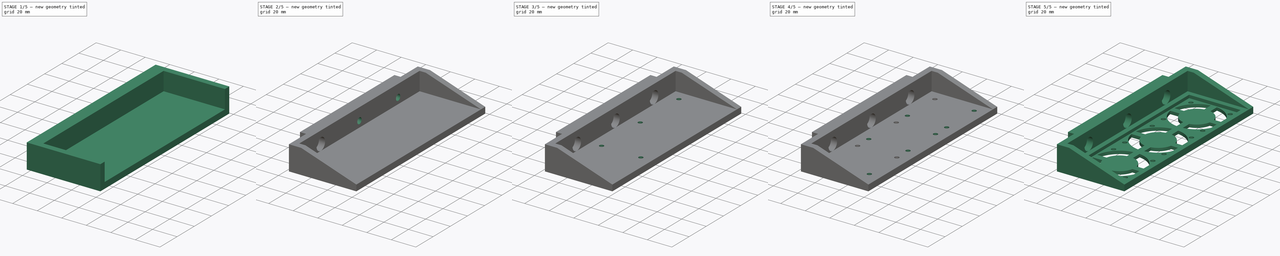
[diagram: build sequence overview — one tinted view per stage of 5, left to right]
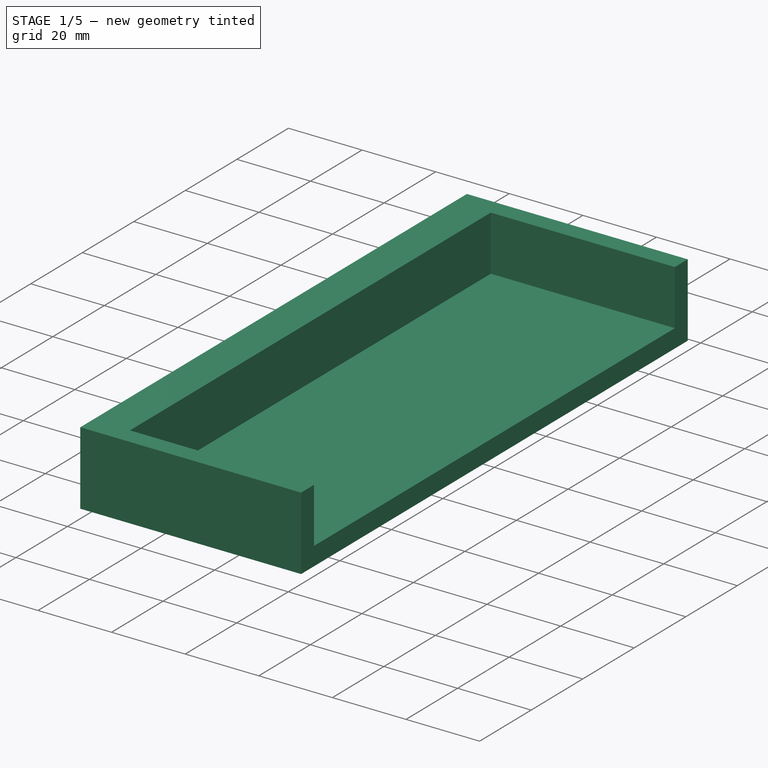
[diagram: stage 1 of 5 — iso view after this stage's code; geometry added in this stage tinted green]
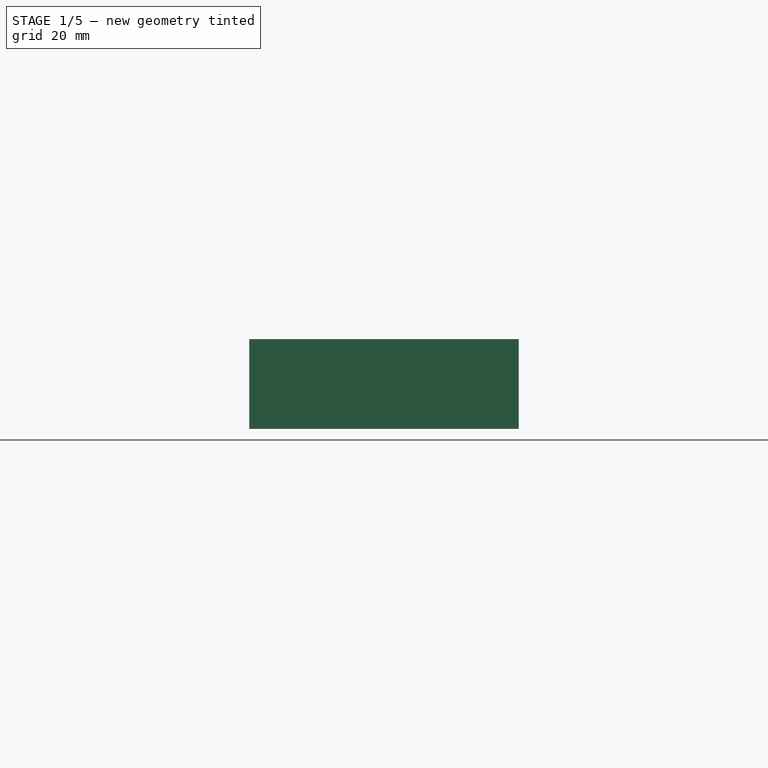
[diagram: stage 1 of 5 — front view after this stage's code; geometry added in this stage tinted green]
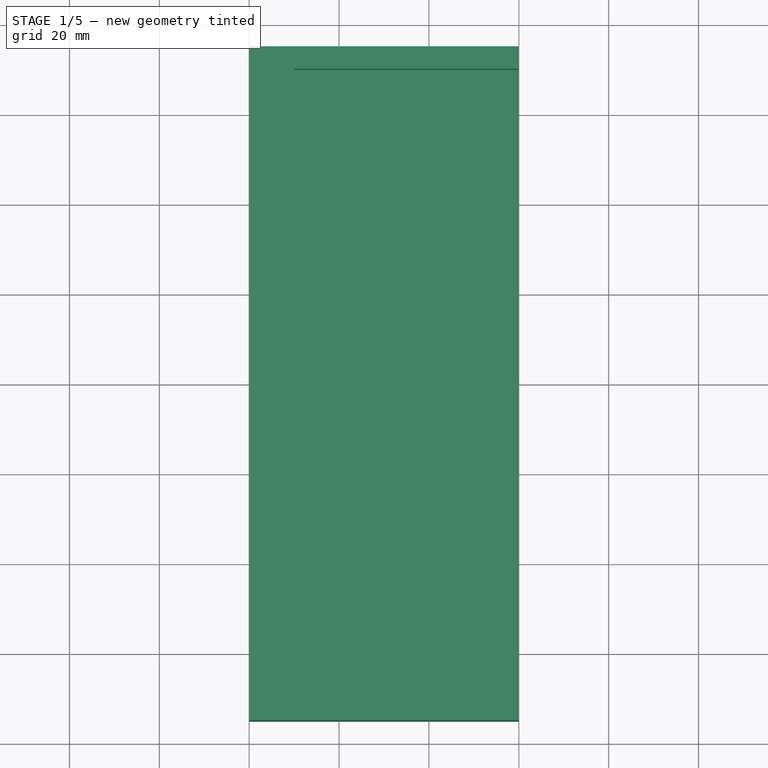
[diagram: stage 1 of 5 — top view after this stage's code; geometry added in this stage tinted green]
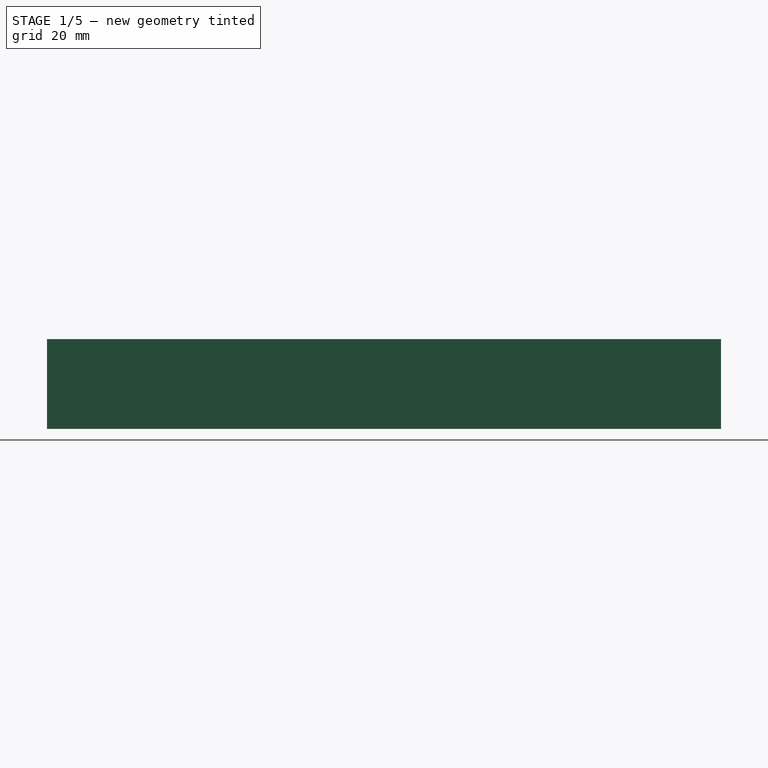
[diagram: stage 1 of 5 — right view after this stage's code; geometry added in this stage tinted green]
FCSTD DOCUMENT  (FreeCAD 0.17R7631 (Git))
Label: heater_pwm_fan_test_ext
License: CreativeCommons Attribution-ShareAlike
LicenseURL: http://creativecommons.org/licenses/by-sa/4.0/
objects: Sketcher::SketchObject×13, PartDesign::Pocket×10, PartDesign::LinearPattern×8, PartDesign::Pad×3, PartDesign::Fillet×3, PartDesign::Body×1, Part::Feature×1
note: 52 computed .brp shape members not serialized (recipe doc carries the construction recipe); baked Part::Feature solids carry a one-line shape summary decoded from their .brp

FEATURE [Sketcher::SketchObject] Sketch
  MapMode = 5
  Support = -> [XY_Plane]
  sketch-geometry (4):
    g0: LineSegment StartX=0 StartY=75 StartZ=0 EndX=60 EndY=75 EndZ=0
    g1: LineSegment StartX=60 StartY=75 StartZ=0 EndX=60 EndY=-75 EndZ=0
    g2: LineSegment StartX=60 StartY=-75 StartZ=0 EndX=0 EndY=-75 EndZ=0
    g3: LineSegment StartX=0 StartY=-75 StartZ=0 EndX=0 EndY=75 EndZ=0
  constraints (12):
    c: Coincident(g0,g1)
    c: Coincident(g1,g2)
    c: Coincident(g2,g3)
    c: Coincident(g3,g0)
    c: Horizontal(g0)
    c: Horizontal(g2)
    c: Vertical(g1)
    c: Vertical(g3)
    c: DistanceY(g3,g3) = 150
    c: DistanceX(g0,g0) = 60
    c: PointOnObject(g2,g-2)
    c: DistanceY(g2,g-1) = 75
FEATURE [PartDesign::Pad] Pad
  Length = 5
  Length2 = 100
  Profile = -> Sketch
  Type = 0
FEATURE [Sketcher::SketchObject] Sketch001
  MapMode = 5
  Placement = pos=(0,0,5) rot=(0,0,1;0rad)
  Support = -> [Pad]
  sketch-geometry (8):
    g0: LineSegment StartX=60 StartY=75 StartZ=0 EndX=60 EndY=70 EndZ=0
    g1: LineSegment StartX=60 StartY=70 StartZ=0 EndX=10 EndY=70 EndZ=0
    g2: LineSegment StartX=10 StartY=70 StartZ=0 EndX=10 EndY=-70 EndZ=0
    g3: LineSegment StartX=10 StartY=-70 StartZ=0 EndX=60 EndY=-70 EndZ=0
    g4: LineSegment StartX=60 StartY=-70 StartZ=0 EndX=60 EndY=-75 EndZ=0
    g5: LineSegment StartX=60 StartY=-75 StartZ=0 EndX=0 EndY=-75 EndZ=0
    g6: LineSegment StartX=0 StartY=-75 StartZ=0 EndX=0 EndY=75 EndZ=0
    g7: LineSegment StartX=0 StartY=75 StartZ=0 EndX=60 EndY=75 EndZ=0
  constraints (16):
    c: Coincident(g0,g1)
    c: Horizontal(g1)
    c: Coincident(g1,g2)
    c: Vertical(g2)
    c: Coincident(g2,g3)
    c: Horizontal(g3)
    c: Coincident(g3,g4)
    c: Coincident(g4,g5)
    c: Coincident(g5,g6)
    c: Coincident(g6,g7)
    c: Coincident(g0,g7)
    c: Vertical(g6)
    c: Vertical(g0)
    c: Vertical(g4)
    c: Horizontal(g7)
    c: Horizontal(g5)
FEATURE [PartDesign::Pad] Pad001
  BaseFeature = -> Pad
  Length = 15
  Length2 = 100
  Profile = -> Sketch001
  Type = 0
FEATURE [PartDesign::Body] Body
  Model = -> [Sketch,Pad,Sketch001,Pad001,Sketch002,Pocket,Sketch003,Pocket001,Sketch004,Pocket002,LinearPattern,Sketch005,Pocket003,LinearPattern001,Sketch006,Pocket004,LinearPattern002,Sketch007,Pocket005,LinearPattern003,Sketch008,Pocket006,LinearPattern004,Sketch009,Pocket007,LinearPattern005,Sketch010,Pocket008,Sketch011,Pocket009,LinearPattern006,Sketch012,Pad002,LinearPattern007]
  Origin = -> BodyOrigin
  Tip = -> LinearPattern007
FEATURE [Part::Feature] LinearPattern007001  label="LinearPattern008"
  shape: bbox 60 x 150 x 20 mm, 90 faces (baked)
FEATURE [PartDesign::Fillet] Fillet
  Base = -> LinearPattern007001 [Edge1,Edge4]
  Radius = 5
FEATURE [PartDesign::Fillet] Fillet001
  Base = -> Fillet [Edge5,Edge6,Edge1,Edge9,Edge11]
  Radius = 1
FEATURE [PartDesign::Fillet] Fillet002
  Base = -> Fillet001 [Edge17,Edge18,Edge20,Edge19]
  Radius = 1
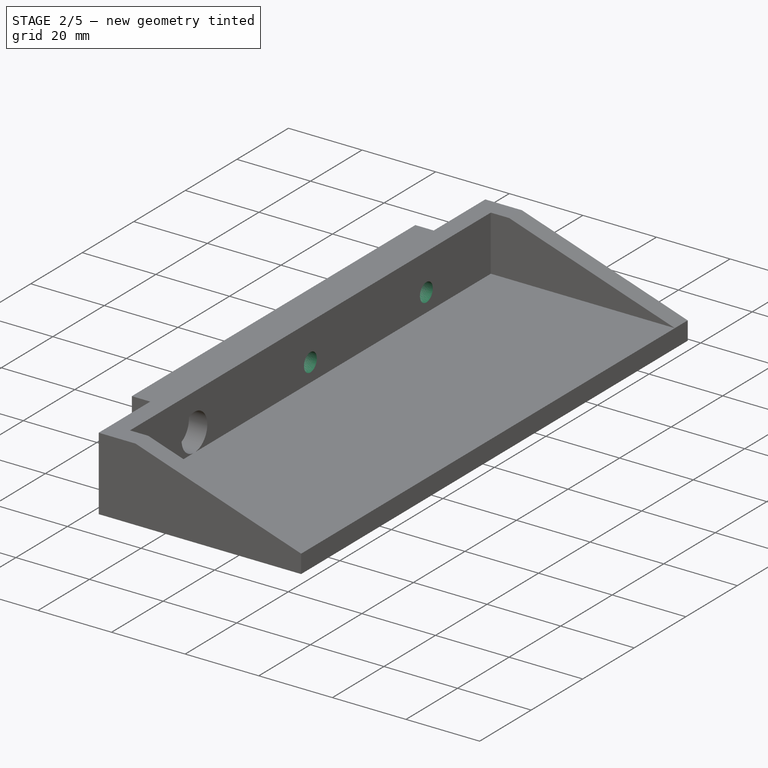
[diagram: stage 2 of 5 — iso view after this stage's code; geometry added in this stage tinted green]
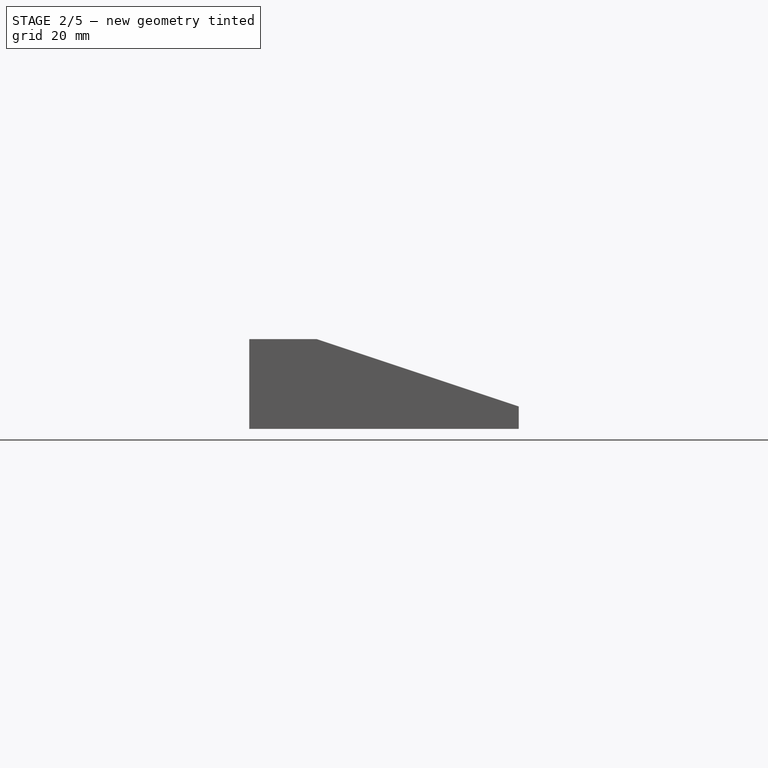
[diagram: stage 2 of 5 — front view after this stage's code; geometry added in this stage tinted green]
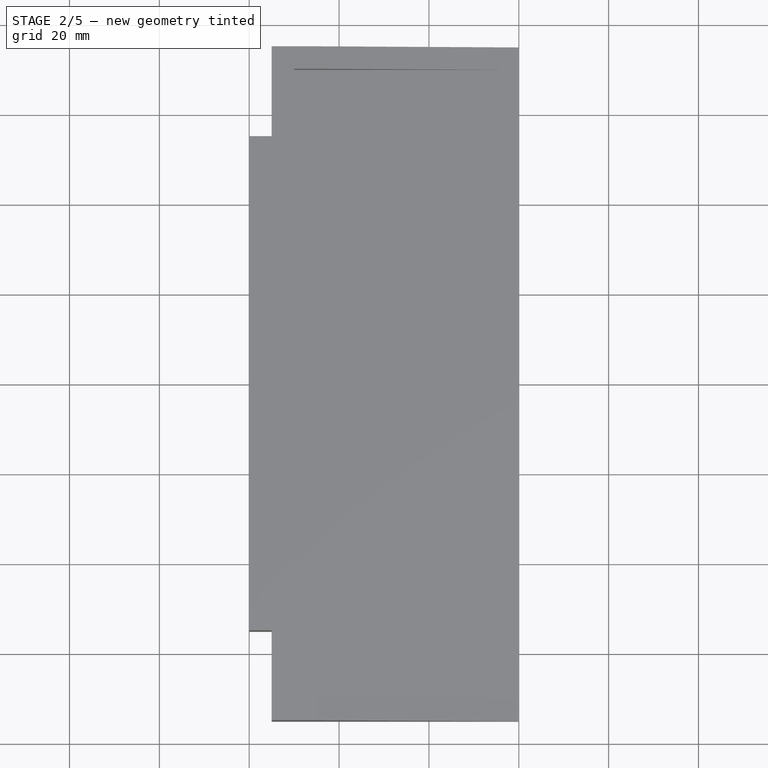
[diagram: stage 2 of 5 — top view after this stage's code; geometry added in this stage tinted green]
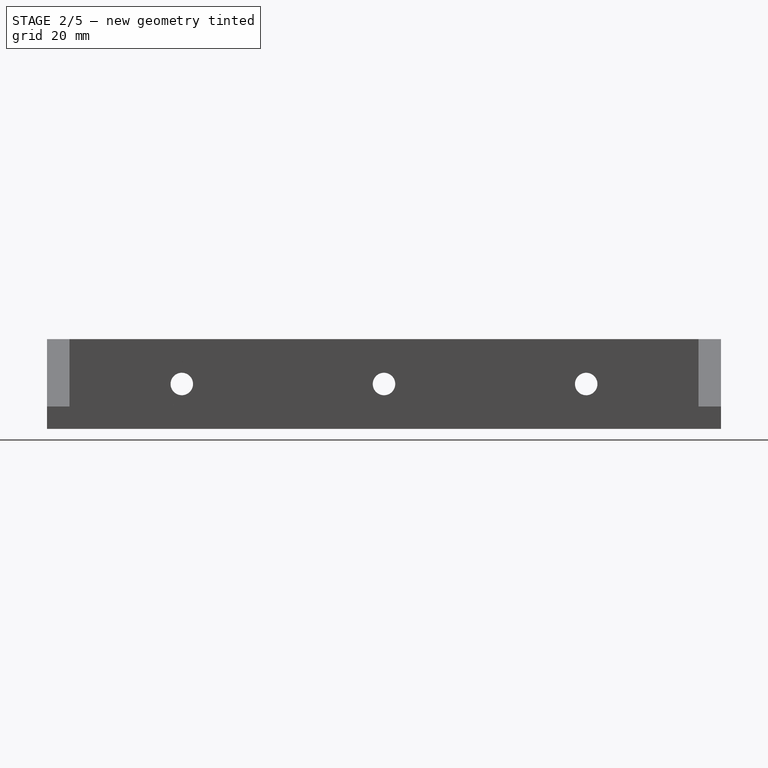
[diagram: stage 2 of 5 — right view after this stage's code; geometry added in this stage tinted green]
FEATURE [Sketcher::SketchObject] Sketch002
  MapMode = 5
  Placement = pos=(0,0,20) rot=(0,0,1;0rad)
  Support = -> [Pad001]
  sketch-geometry (8):
    g0: LineSegment StartX=5 StartY=75 StartZ=0 EndX=5 EndY=55 EndZ=0
    g1: LineSegment StartX=5 StartY=55 StartZ=0 EndX=0 EndY=55 EndZ=0
    g2: LineSegment StartX=0 StartY=55 StartZ=0 EndX=0 EndY=-55 EndZ=0
    g3: LineSegment StartX=0 StartY=-55 StartZ=0 EndX=5 EndY=-55 EndZ=0
    g4: LineSegment StartX=5 StartY=-55 StartZ=0 EndX=5 EndY=-75 EndZ=0
    g5: LineSegment StartX=5 StartY=-75 StartZ=0 EndX=-5 EndY=-75 EndZ=0
    g6: LineSegment StartX=-5 StartY=-75 StartZ=0 EndX=-5 EndY=75 EndZ=0
    g7: LineSegment StartX=-5 StartY=75 StartZ=0 EndX=5 EndY=75 EndZ=0
  constraints (16):
    c: Coincident(g0,g1)
    c: Coincident(g1,g2)
    c: Vertical(g2)
    c: Coincident(g2,g3)
    c: Coincident(g3,g4)
    c: Coincident(g4,g5)
    c: Coincident(g5,g6)
    c: Vertical(g6)
    c: Coincident(g6,g7)
    c: Coincident(g7,g0)
    c: Vertical(g0)
    c: Vertical(g4)
    c: Horizontal(g7)
    c: Horizontal(g1)
    c: Horizontal(g3)
    c: Horizontal(g5)
FEATURE [PartDesign::Pocket] Pocket
  BaseFeature = -> Pad001
  Length = 5
  Profile = -> Sketch002
  Type = 1
FEATURE [Sketcher::SketchObject] Sketch003
  MapMode = 5
  Placement = pos=(0,75,0) rot=(0,0.707107,0.707107;3.14159rad)
  Support = -> [Pocket]
  sketch-geometry (3):
    g0: LineSegment StartX=-15 StartY=20 StartZ=0 EndX=-60 EndY=5 EndZ=0
    g1: LineSegment StartX=-60 StartY=5 StartZ=0 EndX=-60 EndY=20 EndZ=0
    g2: LineSegment StartX=-60 StartY=20 StartZ=0 EndX=-15 EndY=20 EndZ=0
  constraints (5):
    c: Coincident(g0,g1)
    c: Coincident(g1,g2)
    c: Coincident(g0,g2)
    c: Horizontal(g2)
    c: Vertical(g1)
FEATURE [PartDesign::Pocket] Pocket001
  BaseFeature = -> Pocket
  Length = 5
  Profile = -> Sketch003
  Type = 1
FEATURE [Sketcher::SketchObject] Sketch004
  MapMode = 5
  Placement = pos=(10,0,0) rot=(0.57735,0.57735,0.57735;2.0944rad)
  Support = -> [Pocket001]
  sketch-geometry (1):
    g0: Circle CenterX=-45 CenterY=10 CenterZ=0 NormalX=0 NormalY=0 NormalZ=1 Radius=2.5
  constraints (3):
    c: DistanceY(g-1,g0) = 10
    c: DistanceX(g0,g-1) = 45
    c: Radius(g0) = 2.5
FEATURE [PartDesign::Pocket] Pocket002
  BaseFeature = -> Pocket001
  Length = 5
  Profile = -> Sketch004
  Type = 1
FEATURE [PartDesign::LinearPattern] LinearPattern
  BaseFeature = -> Pocket002
  Direction = -> Sketch004 [H_Axis]
  Length = 90
  Occurrences = 3
  Originals = -> [Pocket002]
FEATURE [Sketcher::SketchObject] Sketch005
  ExternalGeometry = -> [LinearPattern]
  MapMode = 5
  Placement = pos=(10,0,0) rot=(0.57735,0.57735,0.57735;2.0944rad)
  Support = -> [LinearPattern]
  sketch-geometry (1):
    g0: Circle CenterX=-45 CenterY=10 CenterZ=0 NormalX=0 NormalY=0 NormalZ=1 Radius=5
  constraints (2):
    c: Coincident(g0,g-3)
    c: Radius(g0) = 5
FEATURE [PartDesign::Pocket] Pocket003
  BaseFeature = -> LinearPattern
  Length = 5
  Profile = -> Sketch005
  Type = 0
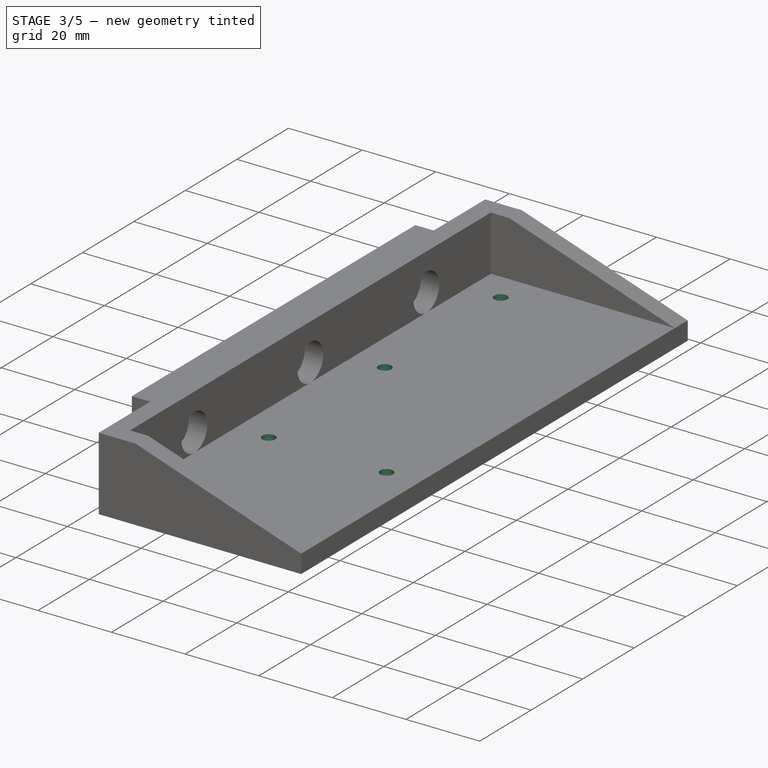
[diagram: stage 3 of 5 — iso view after this stage's code; geometry added in this stage tinted green]
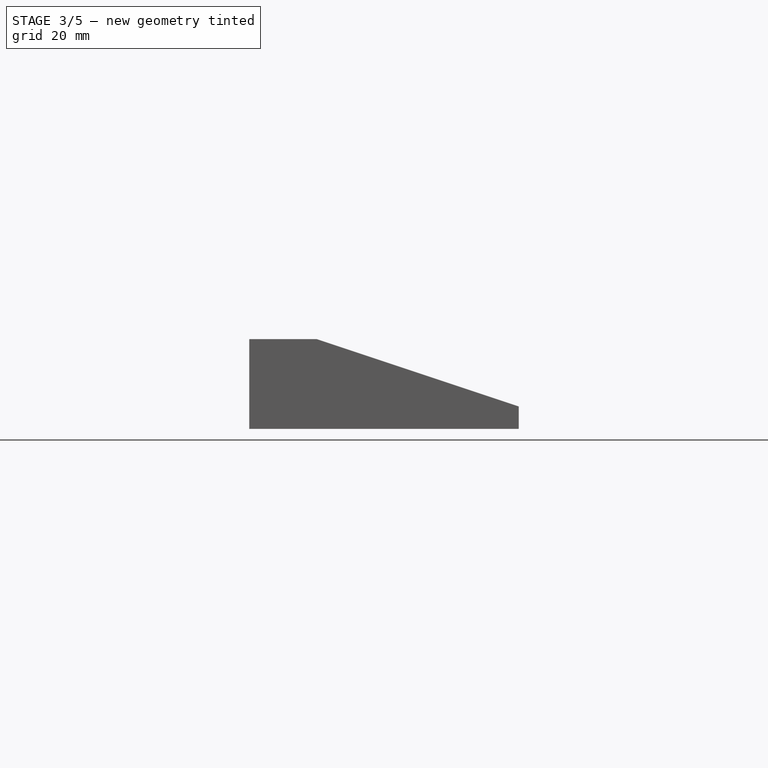
[diagram: stage 3 of 5 — front view after this stage's code; geometry added in this stage tinted green]
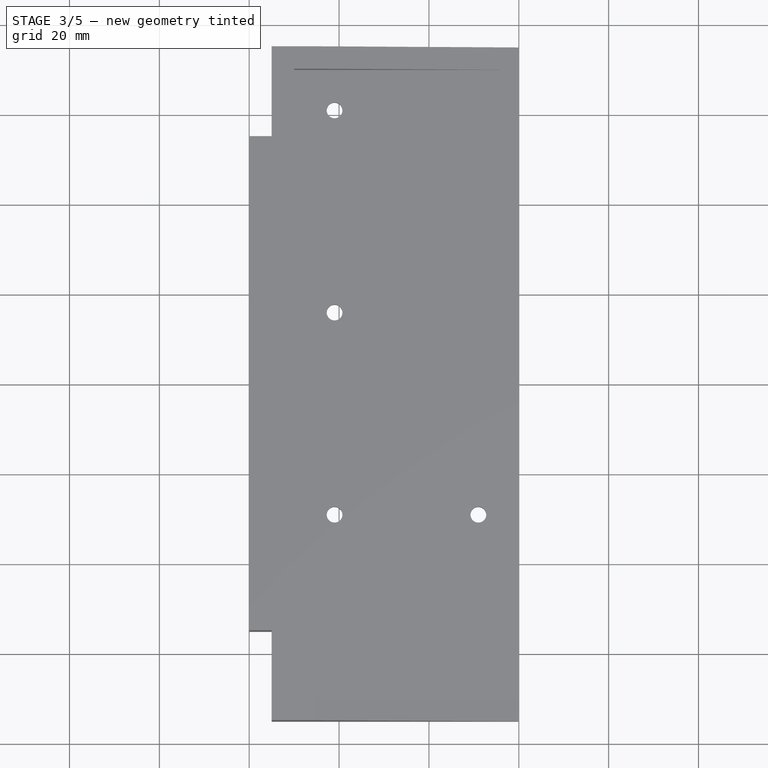
[diagram: stage 3 of 5 — top view after this stage's code; geometry added in this stage tinted green]
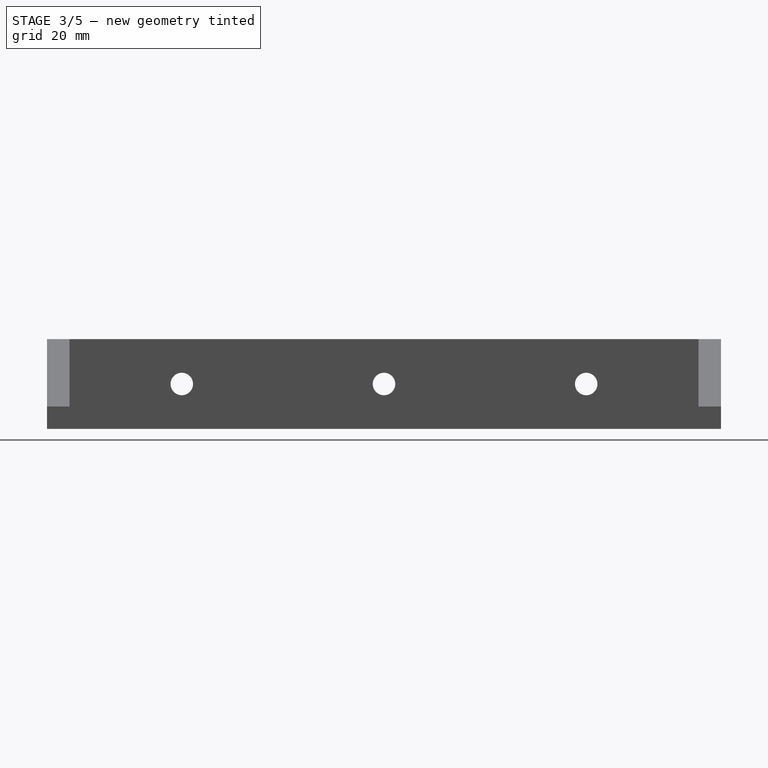
[diagram: stage 3 of 5 — right view after this stage's code; geometry added in this stage tinted green]
FEATURE [PartDesign::LinearPattern] LinearPattern001
  BaseFeature = -> Pocket003
  Direction = -> Sketch005 [H_Axis]
  Length = 90
  Occurrences = 3
  Originals = -> [Pocket003]
FEATURE [Sketcher::SketchObject] Sketch006
  MapMode = 5
  Placement = pos=(0,0,5) rot=(0,0,1;0rad)
  Support = -> [LinearPattern001]
  sketch-geometry (10):
    g0: LineSegment [constr] StartX=15 StartY=-25 StartZ=0 EndX=55 EndY=-25 EndZ=0
    g1: LineSegment [constr] StartX=55 StartY=-25 StartZ=0 EndX=55 EndY=-65 EndZ=0
    g2: LineSegment [constr] StartX=55 StartY=-65 StartZ=0 EndX=15 EndY=-65 EndZ=0
    g3: LineSegment [constr] StartX=15 StartY=-65 StartZ=0 EndX=15 EndY=-25 EndZ=0
    g4: LineSegment [constr] StartX=51 StartY=-29 StartZ=0 EndX=19 EndY=-29 EndZ=0
    g5: LineSegment [constr] StartX=19 StartY=-29 StartZ=0 EndX=19 EndY=-61 EndZ=0
    g6: LineSegment [constr] StartX=19 StartY=-61 StartZ=0 EndX=51 EndY=-61 EndZ=0
    g7: LineSegment [constr] StartX=51 StartY=-61 StartZ=0 EndX=51 EndY=-29 EndZ=0
    g8: Circle [constr] CenterX=35 CenterY=-45 CenterZ=0 NormalX=0 NormalY=0 NormalZ=1 Radius=22.6274
    g9: Circle CenterX=19 CenterY=-29 CenterZ=0 NormalX=0 NormalY=0 NormalZ=1 Radius=1.75
  constraints (24):
    c: Coincident(g0,g1)
    c: Coincident(g1,g2)
    c: Coincident(g2,g3)
    c: Coincident(g3,g0)
    c: Horizontal(g0)
    c: Horizontal(g2)
    c: Vertical(g1)
    c: Vertical(g3)
    c: Equal(g0,g1)
    c: DistanceX(g0,g0) = 40
    c: Coincident(g4,g5)
    c: Coincident(g5,g6)
    c: Coincident(g6,g7)
    c: Coincident(g7,g4)
    c: Equal(g4,g5)
    c: Equal(g4,g6)
    c: Equal(g4,g7)
    c: PointOnObject(g4,g8)
    c: PointOnObject(g5,g8)
    c: PointOnObject(g6,g8)
    c: PointOnObject(g7,g8)
    c: Coincident(g9,g4)
    c: Vertical(g5)
    c: DistanceX(g4,g4) = 32
FEATURE [PartDesign::Pocket] Pocket004
  BaseFeature = -> LinearPattern001
  Length = 5
  Profile = -> Sketch006
  Type = 0
FEATURE [PartDesign::LinearPattern] LinearPattern002
  BaseFeature = -> Pocket004
  Direction = -> Sketch006 [V_Axis]
  Length = 90
  Occurrences = 3
  Originals = -> [Pocket004]
FEATURE [Sketcher::SketchObject] Sketch007
  ExternalGeometry = -> [LinearPattern002]
  MapMode = 5
  Placement = pos=(0,0,5) rot=(0,0,1;0rad)
  Support = -> [LinearPattern002]
  sketch-geometry (6):
    g0: LineSegment [constr] StartX=19 StartY=-29 StartZ=0 EndX=19 EndY=-61 EndZ=0
    g1: LineSegment [constr] StartX=19 StartY=-61 StartZ=0 EndX=51 EndY=-61 EndZ=0
    g2: LineSegment [constr] StartX=51 StartY=-61 StartZ=0 EndX=51 EndY=-29 EndZ=0
    g3: LineSegment [constr] StartX=51 StartY=-29 StartZ=0 EndX=19 EndY=-29 EndZ=0
    g4: Circle [constr] CenterX=35 CenterY=-45 CenterZ=0 NormalX=0 NormalY=0 NormalZ=1 Radius=22.6274
    g5: Circle CenterX=51 CenterY=-29 CenterZ=0 NormalX=0 NormalY=0 NormalZ=1 Radius=1.75
  constraints (16):
    c: Coincident(g0,g1)
    c: Coincident(g1,g2)
    c: Coincident(g2,g3)
    c: Coincident(g3,g0)
    c: Equal(g0,g1)
    c: Equal(g0,g2)
    c: Equal(g0,g3)
    c: PointOnObject(g0,g4)
    c: PointOnObject(g1,g4)
    c: PointOnObject(g2,g4)
    c: PointOnObject(g3,g4)
    c: Vertical(g0)
    c: Coincident(g0,g-3)
    c: DistanceX(g3,g3) = 32
    c: Coincident(g2,g5)
    c: Radius(g5) = 1.75
FEATURE [PartDesign::Pocket] Pocket005
  BaseFeature = -> LinearPattern002
  Length = 5
  Profile = -> Sketch007
  Type = 0
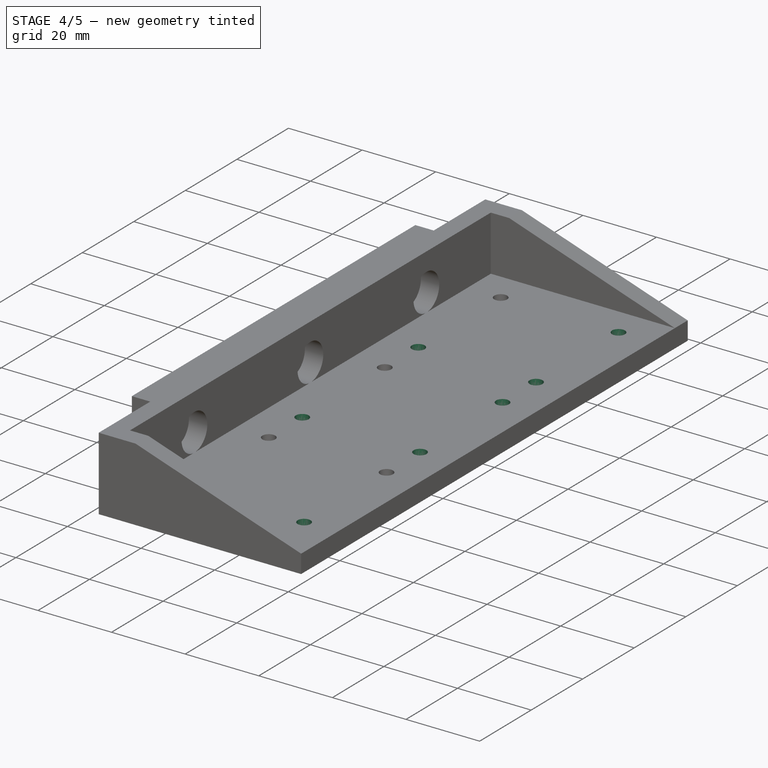
[diagram: stage 4 of 5 — iso view after this stage's code; geometry added in this stage tinted green]
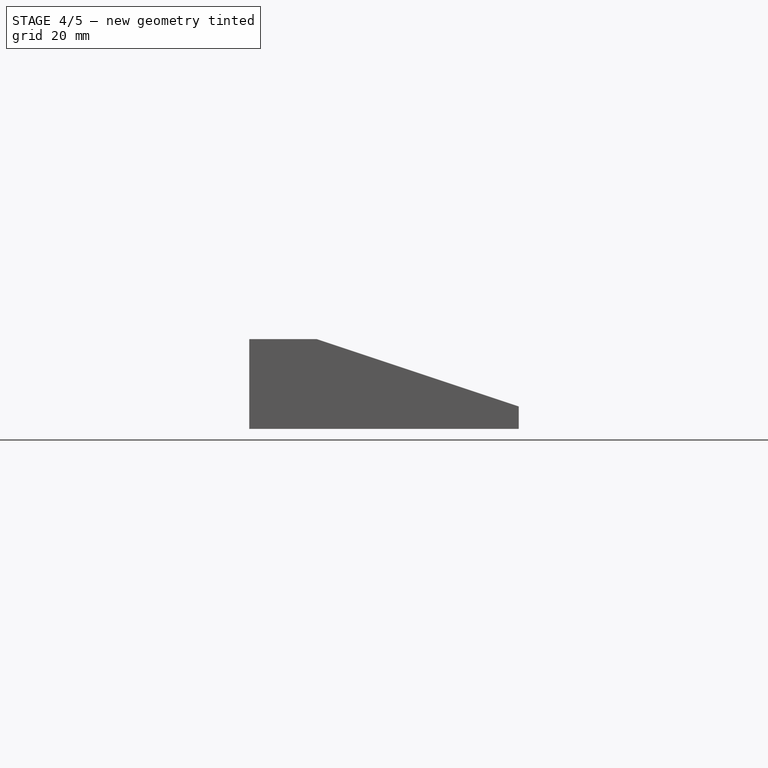
[diagram: stage 4 of 5 — front view after this stage's code; geometry added in this stage tinted green]
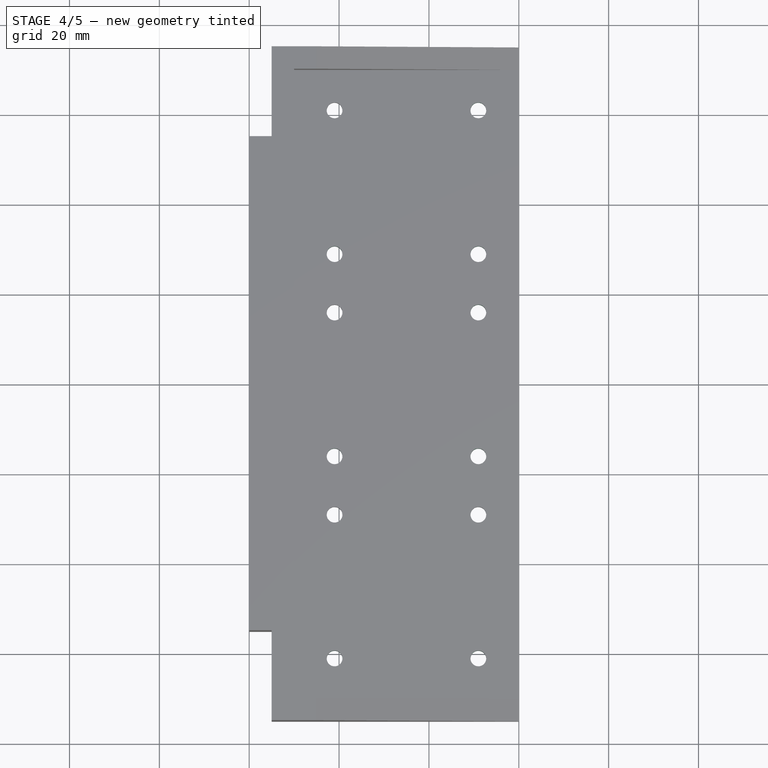
[diagram: stage 4 of 5 — top view after this stage's code; geometry added in this stage tinted green]
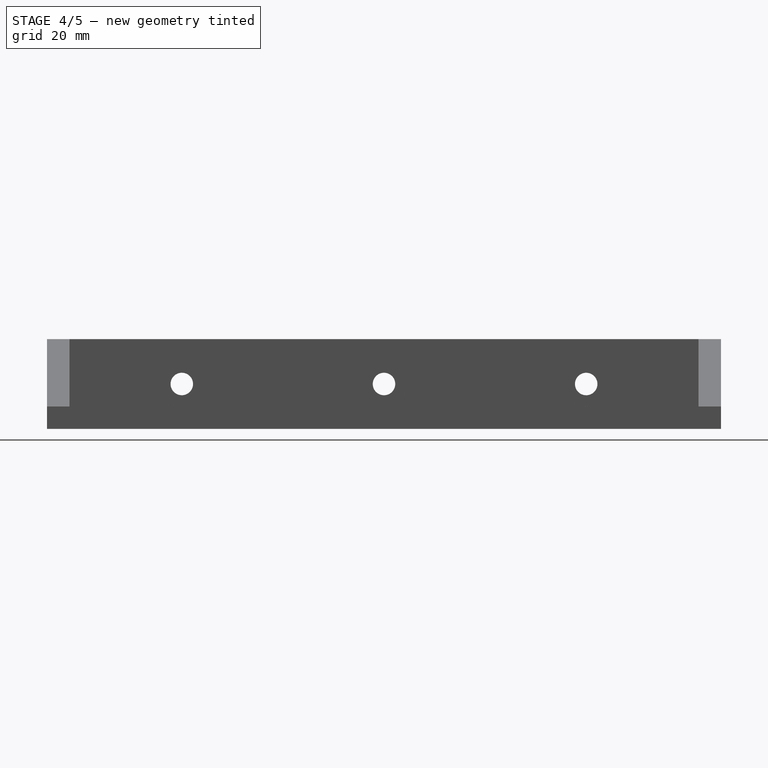
[diagram: stage 4 of 5 — right view after this stage's code; geometry added in this stage tinted green]
FEATURE [PartDesign::LinearPattern] LinearPattern003
  BaseFeature = -> Pocket005
  Direction = -> Sketch007 [V_Axis]
  Length = 90
  Occurrences = 3
  Originals = -> [Pocket005]
FEATURE [Sketcher::SketchObject] Sketch008
  ExternalGeometry = -> [LinearPattern003]
  MapMode = 5
  Placement = pos=(0,0,5) rot=(0,0,1;0rad)
  Support = -> [LinearPattern003]
  sketch-geometry (6):
    g0: LineSegment [constr] StartX=19 StartY=-29 StartZ=0 EndX=19 EndY=-61 EndZ=0
    g1: LineSegment [constr] StartX=19 StartY=-61 StartZ=0 EndX=51 EndY=-61 EndZ=0
    g2: LineSegment [constr] StartX=51 StartY=-61 StartZ=0 EndX=51 EndY=-29 EndZ=0
    g3: LineSegment [constr] StartX=51 StartY=-29 StartZ=0 EndX=19 EndY=-29 EndZ=0
    g4: Circle [constr] CenterX=35 CenterY=-45 CenterZ=0 NormalX=0 NormalY=0 NormalZ=1 Radius=22.6274
    g5: Circle CenterX=19 CenterY=-61 CenterZ=0 NormalX=0 NormalY=0 NormalZ=1 Radius=1.75
  constraints (15):
    c: Coincident(g0,g1)
    c: Coincident(g1,g2)
    c: Coincident(g2,g3)
    c: Coincident(g3,g0)
    c: Equal(g0,g1)
    c: Equal(g0,g2)
    c: Equal(g0,g3)
    c: PointOnObject(g0,g4)
    c: PointOnObject(g1,g4)
    c: PointOnObject(g2,g4)
    c: PointOnObject(g3,g4)
    c: Coincident(g0,g-3)
    c: Coincident(g2,g-4)
    c: Coincident(g0,g5)
    c: Radius(g5) = 1.75
FEATURE [PartDesign::Pocket] Pocket006
  BaseFeature = -> LinearPattern003
  Length = 5
  Profile = -> Sketch008
  Type = 0
FEATURE [PartDesign::LinearPattern] LinearPattern004
  BaseFeature = -> Pocket006
  Direction = -> Sketch008 [V_Axis]
  Length = 90
  Occurrences = 3
  Originals = -> [Pocket006]
FEATURE [Sketcher::SketchObject] Sketch009
  ExternalGeometry = -> [LinearPattern004]
  MapMode = 5
  Placement = pos=(0,0,5) rot=(0,0,1;0rad)
  Support = -> [LinearPattern004]
  sketch-geometry (6):
    g0: LineSegment [constr] StartX=19 StartY=-29 StartZ=0 EndX=19 EndY=-61 EndZ=0
    g1: LineSegment [constr] StartX=19 StartY=-61 StartZ=0 EndX=51 EndY=-61 EndZ=0
    g2: LineSegment [constr] StartX=51 StartY=-61 StartZ=0 EndX=51 EndY=-29 EndZ=0
    g3: LineSegment [constr] StartX=51 StartY=-29 StartZ=0 EndX=19 EndY=-29 EndZ=0
    g4: Circle [constr] CenterX=35 CenterY=-45 CenterZ=0 NormalX=0 NormalY=0 NormalZ=1 Radius=22.6274
    g5: Circle CenterX=51 CenterY=-61 CenterZ=0 NormalX=0 NormalY=0 NormalZ=1 Radius=1.75
  constraints (15):
    c: Coincident(g0,g1)
    c: Coincident(g1,g2)
    c: Coincident(g2,g3)
    c: Coincident(g3,g0)
    c: Equal(g0,g1)
    c: Equal(g0,g2)
    c: Equal(g0,g3)
    c: PointOnObject(g0,g4)
    c: PointOnObject(g1,g4)
    c: PointOnObject(g2,g4)
    c: PointOnObject(g3,g4)
    c: Coincident(g2,g-4)
    c: Coincident(g0,g-3)
    c: Coincident(g1,g5)
    c: Radius(g5) = 1.75
FEATURE [PartDesign::Pocket] Pocket007
  BaseFeature = -> LinearPattern004
  Length = 5
  Profile = -> Sketch009
  Type = 0
FEATURE [PartDesign::LinearPattern] LinearPattern005
  BaseFeature = -> Pocket007
  Direction = -> Sketch009 [V_Axis]
  Length = 90
  Occurrences = 3
  Originals = -> [Pocket007]
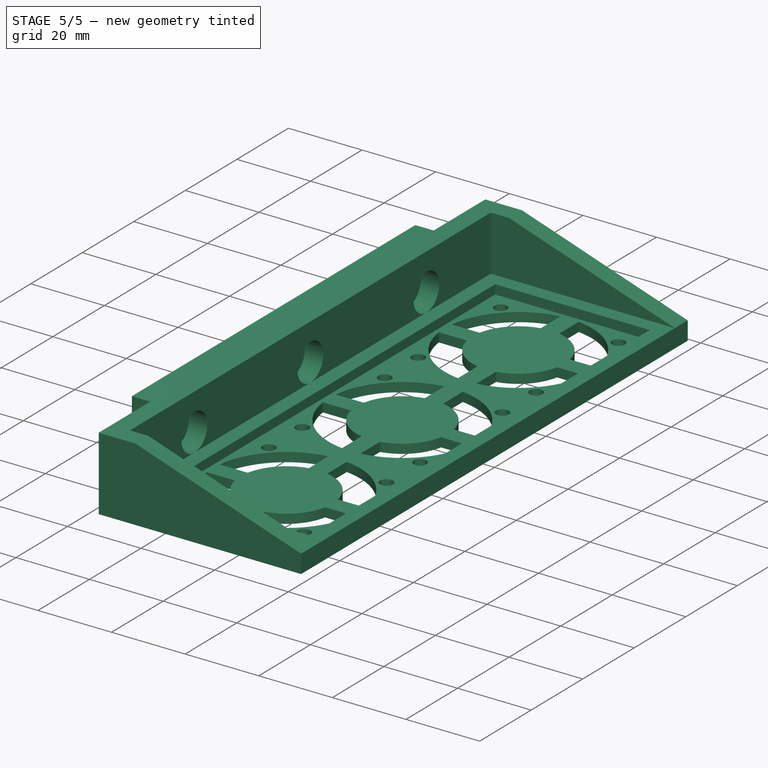
[diagram: stage 5 of 5 — iso view after this stage's code; geometry added in this stage tinted green]
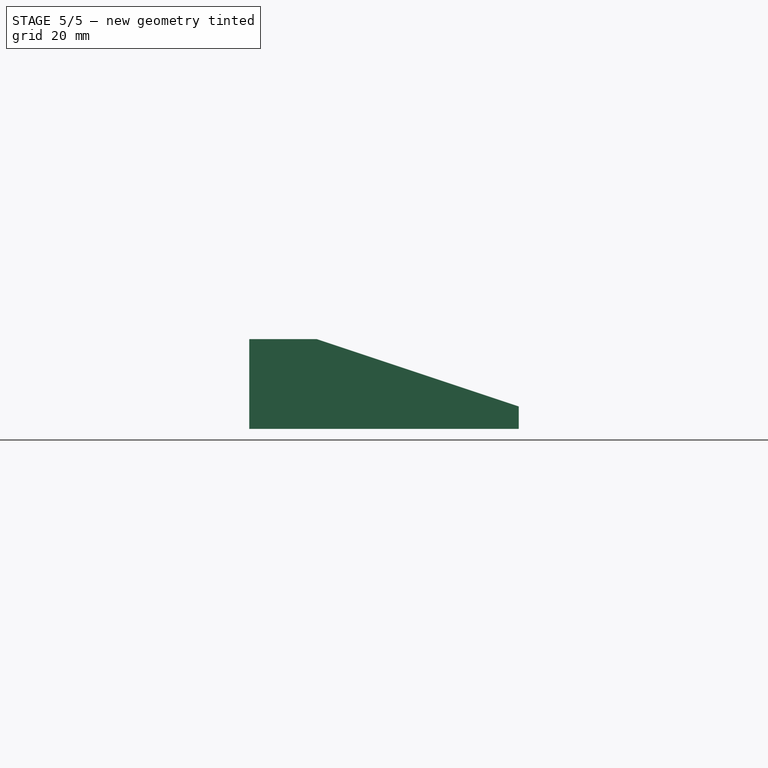
[diagram: stage 5 of 5 — front view after this stage's code; geometry added in this stage tinted green]
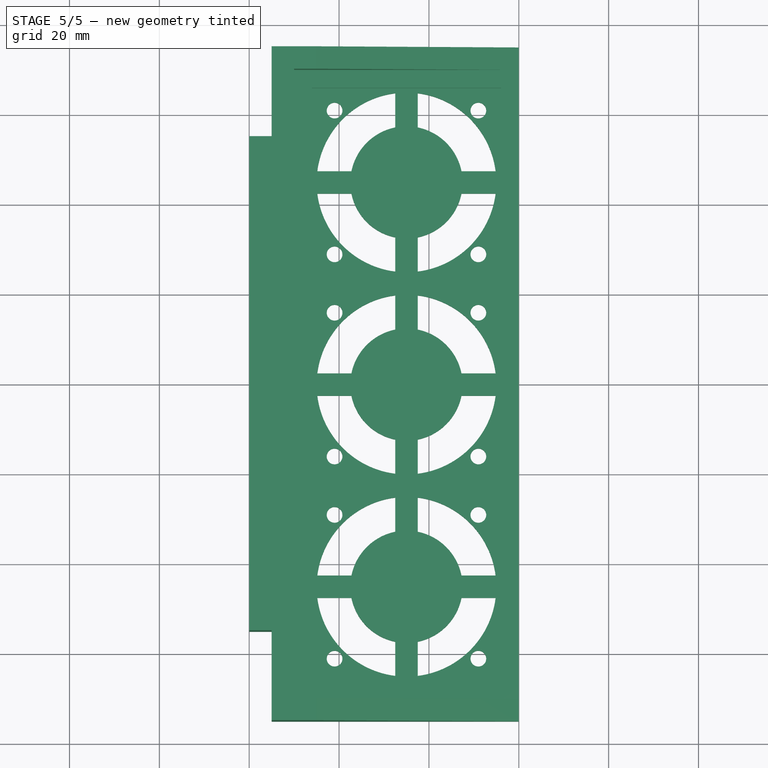
[diagram: stage 5 of 5 — top view after this stage's code; geometry added in this stage tinted green]
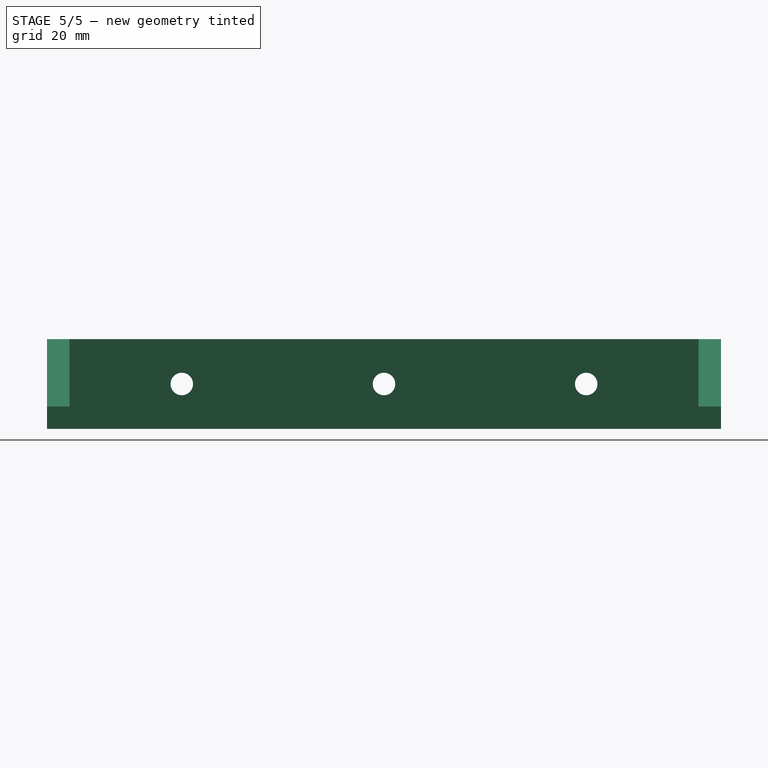
[diagram: stage 5 of 5 — right view after this stage's code; geometry added in this stage tinted green]
FEATURE [Sketcher::SketchObject] Sketch010
  ExternalGeometry = -> [LinearPattern005]
  MapMode = 5
  Placement = pos=(0,0,5) rot=(0,0,1;0rad)
  Support = -> [LinearPattern005]
  sketch-geometry (4):
    g0: LineSegment StartX=14 StartY=66 StartZ=0 EndX=56 EndY=66 EndZ=0
    g1: LineSegment StartX=56 StartY=66 StartZ=0 EndX=56 EndY=-66 EndZ=0
    g2: LineSegment StartX=56 StartY=-66 StartZ=0 EndX=14 EndY=-66 EndZ=0
    g3: LineSegment StartX=14 StartY=-66 StartZ=0 EndX=14 EndY=66 EndZ=0
  constraints (12):
    c: Coincident(g0,g1)
    c: Coincident(g1,g2)
    c: Coincident(g2,g3)
    c: Coincident(g3,g0)
    c: Horizontal(g0)
    c: Horizontal(g2)
    c: Vertical(g1)
    c: Vertical(g3)
    c: DistanceX(g0,g0) = 42
    c: DistanceY(g1,g1) = 132
    c: DistanceX(g0,g-3) = 5
    c: DistanceY(g-3,g0) = 5
FEATURE [PartDesign::Pocket] Pocket008
  BaseFeature = -> LinearPattern005
  Length = 2.5
  Profile = -> Sketch010
  Type = 0
FEATURE [Sketcher::SketchObject] Sketch011
  MapMode = 5
  Placement = pos=(0,0,2.5) rot=(0,0,1;0rad)
  Support = -> [Pocket008]
  sketch-geometry (1):
    g0: Circle CenterX=35 CenterY=-45 CenterZ=0 NormalX=0 NormalY=0 NormalZ=1 Radius=20
  constraints (1):
    c: Radius(g0) = 20
FEATURE [PartDesign::Pocket] Pocket009
  BaseFeature = -> Pocket008
  Length = 5
  Profile = -> Sketch011
  Type = 0
FEATURE [PartDesign::LinearPattern] LinearPattern006
  BaseFeature = -> Pocket009
  Direction = -> Sketch011 [V_Axis]
  Length = 90
  Occurrences = 3
  Originals = -> [Pocket009]
FEATURE [Sketcher::SketchObject] Sketch012
  ExternalGeometry = -> [LinearPattern006]
  MapMode = 5
  Placement = pos=(0,0,2.5) rot=(0,0,1;0rad)
  Support = -> [LinearPattern006]
  sketch-geometry (16):
    g0: ArcOfCircle CenterX=35 CenterY=-45 CenterZ=0 NormalX=0 NormalY=0 NormalZ=1 Radius=12.5 StartAngle=1.77215 EndAngle=2.94023
    g1: ArcOfCircle CenterX=35 CenterY=-25 CenterZ=0 NormalX=0 NormalY=0 NormalZ=1 Radius=2.5 StartAngle=0 EndAngle=3.14159
    g2: ArcOfCircle CenterX=35 CenterY=-65 CenterZ=0 NormalX=0 NormalY=0 NormalZ=1 Radius=2.5 StartAngle=3.14159 EndAngle=6.28319
    g3: LineSegment StartX=32.5 StartY=-25 StartZ=0 EndX=32.5 EndY=-32.7526 EndZ=0
    g4: LineSegment StartX=37.5 StartY=-25 StartZ=0 EndX=37.5 EndY=-32.7526 EndZ=0
    g5: ArcOfCircle CenterX=15 CenterY=-45 CenterZ=0 NormalX=0 NormalY=0 NormalZ=1 Radius=2.5 StartAngle=1.5708 EndAngle=4.71239
    g6: ArcOfCircle CenterX=55 CenterY=-45 CenterZ=0 NormalX=0 NormalY=0 NormalZ=1 Radius=2.5 StartAngle=4.71239 EndAngle=7.85398
    g7: LineSegment StartX=15 StartY=-47.5 StartZ=0 EndX=22.7526 EndY=-47.5 EndZ=0
    g8: LineSegment StartX=15 StartY=-42.5 StartZ=0 EndX=22.7526 EndY=-42.5 EndZ=0
    g9: ArcOfCircle CenterX=35 CenterY=-45 CenterZ=0 NormalX=0 NormalY=0 NormalZ=1 Radius=12.5 StartAngle=3.34295 EndAngle=4.51103
    g10: ArcOfCircle CenterX=35 CenterY=-45 CenterZ=0 NormalX=0 NormalY=0 NormalZ=1 Radius=12.5 StartAngle=4.91375 EndAngle=6.08183
    g11: ArcOfCircle CenterX=35 CenterY=-45 CenterZ=0 NormalX=0 NormalY=0 NormalZ=1 Radius=12.5 StartAngle=0.201358 EndAngle=1.36944
    g12: LineSegment StartX=47.2474 StartY=-42.5 StartZ=0 EndX=55 EndY=-42.5 EndZ=0
    g13: LineSegment StartX=32.5 StartY=-57.2474 StartZ=0 EndX=32.5 EndY=-65 EndZ=0
    g14: LineSegment StartX=37.5 StartY=-57.2474 StartZ=0 EndX=37.5 EndY=-65 EndZ=0
    g15: LineSegment StartX=47.2474 StartY=-47.5 StartZ=0 EndX=55 EndY=-47.5 EndZ=0
  constraints (43):
    c: Radius(g0) = 12.5
    c: Tangent(g1,g4) = 1.5708
    c: Tangent(g1,g3) = -1.5708
    c: Tangent(g13,g2) = -1.5708
    c: Tangent(g14,g2) = 1.5708
    c: Vertical(g3)
    c: Equal(g1,g2)
    c: Tangent(g5,g8) = 1.5708
    c: Tangent(g5,g7) = -1.5708
    c: Tangent(g15,g6) = -1.5708
    c: Tangent(g12,g6) = 1.5708
    c: Horizontal(g7)
    c: Equal(g5,g6)
    c: DistanceX(g2,g0) = 0
    c: DistanceY(g0,g6) = 0
    c: Radius(g6) = 2.5
    c: Radius(g1) = 2.5
    c: PointOnObject(g2,g-3)
    c: PointOnObject(g5,g-3)
    c: PointOnObject(g1,g-3)
    c: PointOnObject(g6,g-3)
    c: Equal(g10,g11)
    c: Coincident(g12,g11)
    c: Coincident(g4,g11)
    c: Coincident(g3,g0)
    c: Coincident(g8,g0)
    c: Coincident(g7,g9)
    c: Coincident(g9,g13)
    c: Coincident(g10,g14)
    c: Coincident(g10,g15)
    c: Equal(g15,g12)
    c: Equal(g12,g4)
    c: Equal(g4,g3)
    c: Equal(g3,g8)
    c: Equal(g8,g7)
    c: Equal(g7,g13)
    c: Equal(g13,g14)
    c: Parallel(g15,g12)
    c: Parallel(g3,g4)
    c: Parallel(g8,g7)
    c: Parallel(g13,g14)
    c: Equal(g11,g0)
    c: Equal(g0,g9)
FEATURE [PartDesign::Pad] Pad002
  BaseFeature = -> LinearPattern006
  Length = 2.5
  Length2 = 100
  Profile = -> Sketch012
  Reversed = true
  Type = 0
FEATURE [PartDesign::LinearPattern] LinearPattern007
  BaseFeature = -> Pad002
  Direction = -> Sketch012 [V_Axis]
  Length = 90
  Occurrences = 3
  Originals = -> [Pad002]
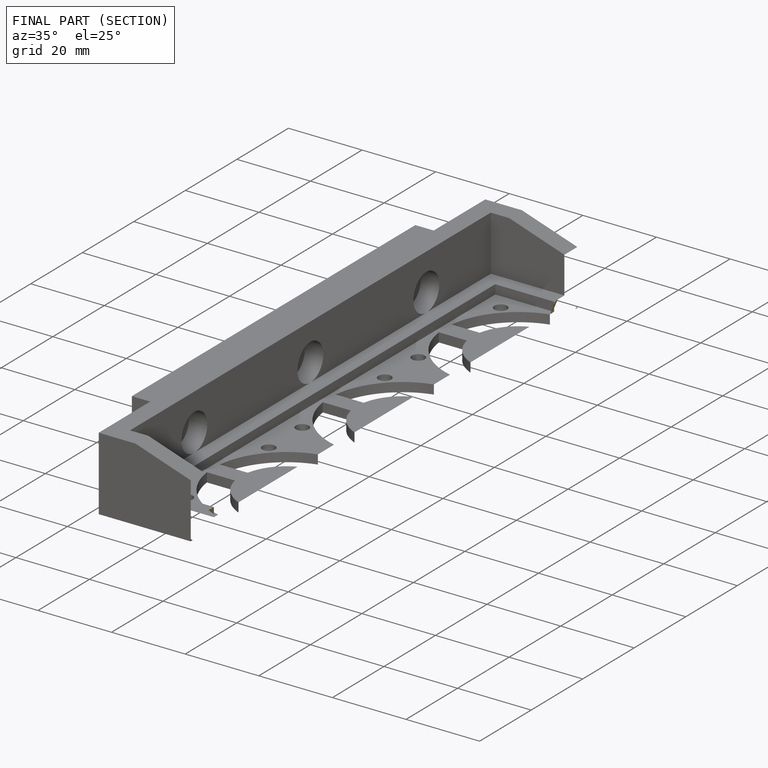
[diagram: finished part — half-section view (interior)]
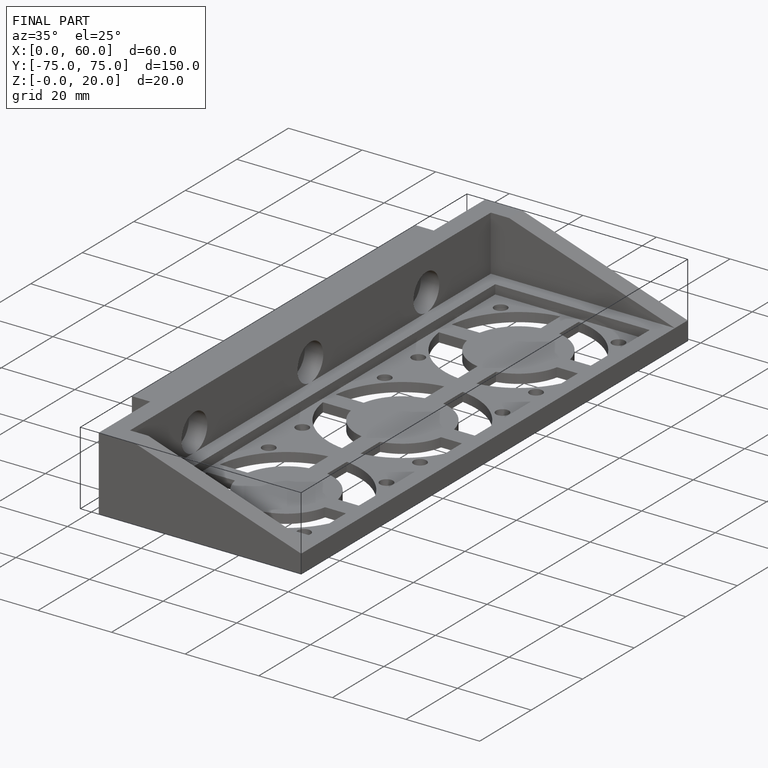
[diagram: finished part — iso view with bounding-box wireframe]
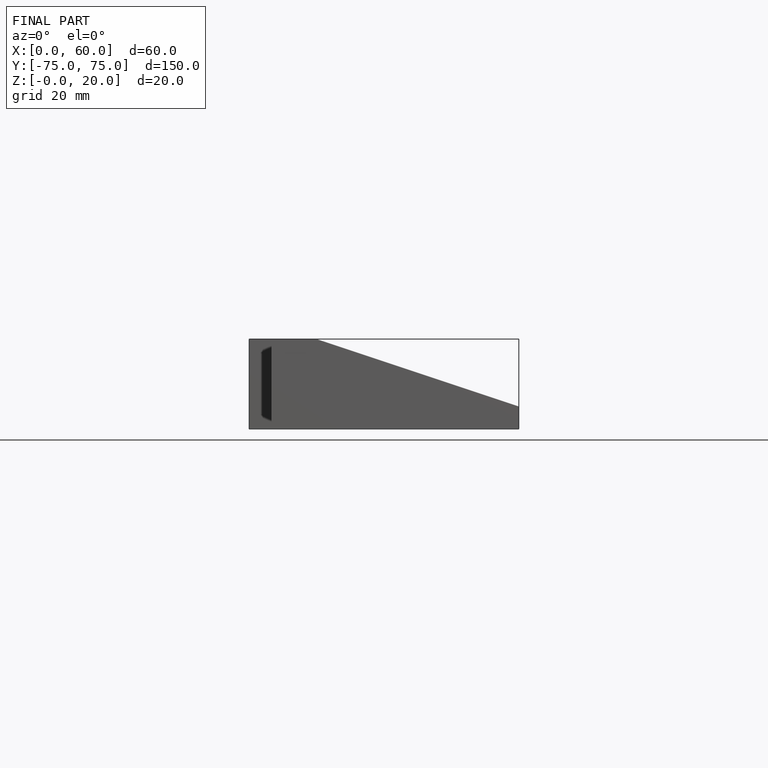
[diagram: finished part — front view with bounding-box wireframe]
